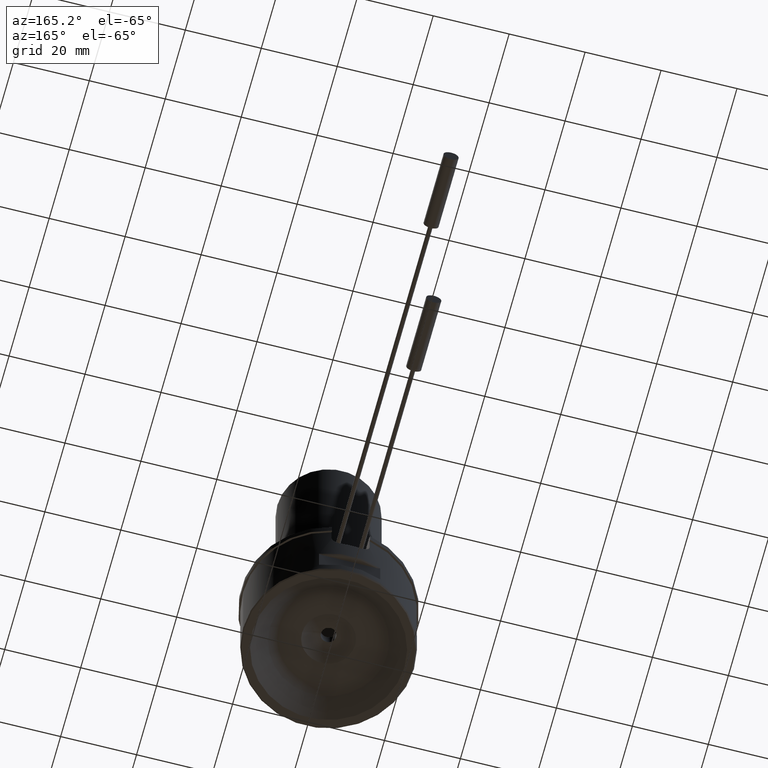
[diagram: clean part render]
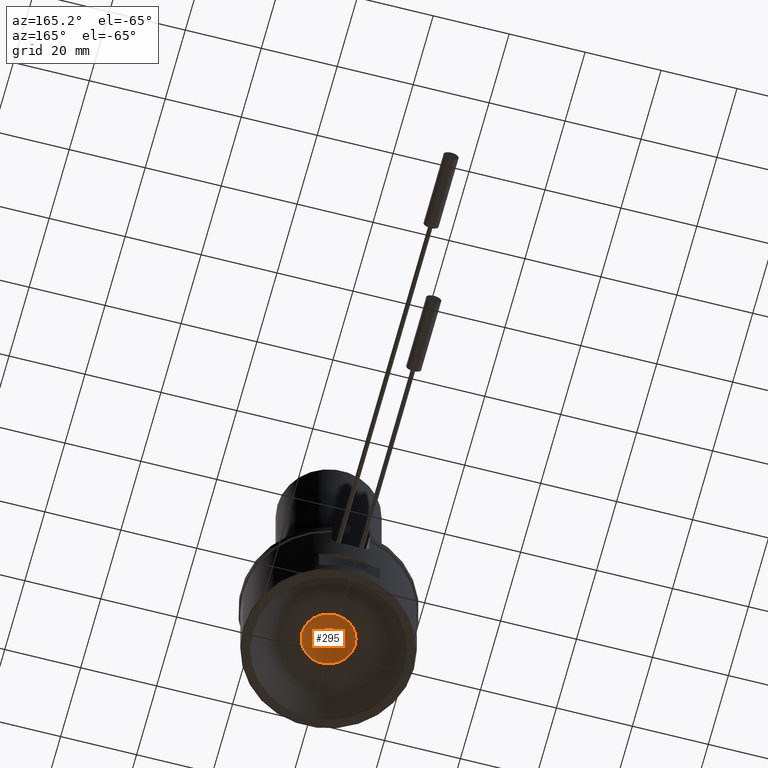
[diagram: same view with one face highlighted and labeled with its STEP entity id]
A machine part, auxiliary view. The second image highlights one B-rep face of the part: STEP entity #295.
In plain terms, the highlighted spherical surface has radius 11 mm.
Its self-contained STEP definition (entity closure, byte-faithful):
#26=SPHERICAL_SURFACE('',#1180,11.);
#295=ADVANCED_FACE('',(#387,#388),#26,.F.);
#387=FACE_BOUND('',#467,.T.);
#388=FACE_BOUND('',#468,.T.);
#467=EDGE_LOOP('',(#636));
#468=EDGE_LOOP('',(#637));
#636=ORIENTED_EDGE('',*,*,#977,.T.);
#637=ORIENTED_EDGE('',*,*,#976,.F.);
#868=VERTEX_POINT('',#1894);
#869=VERTEX_POINT('',#1897);
#976=EDGE_CURVE('',#868,#868,#1066,.T.);
#977=EDGE_CURVE('',#869,#869,#1067,.T.);
#1066=CIRCLE('',#1177,1.99999999999999);
#1067=CIRCLE('',#1179,6.98212002188452);
#1177=AXIS2_PLACEMENT_3D('',#1893,#1418,#1419);
#1179=AXIS2_PLACEMENT_3D('',#1896,#1422,#1423);
#1180=AXIS2_PLACEMENT_3D('',#1898,#1424,#1425);
#1418=DIRECTION('',(0.,0.,-1.));
#1419=DIRECTION('',(1.,0.,0.));
#1422=DIRECTION('',(0.,0.,-1.));
#1423=DIRECTION('',(1.,0.,0.));
#1424=DIRECTION('',(0.,-6.12323399573677E-17,1.));
#1425=DIRECTION('',(0.,-1.,0.));
#1893=CARTESIAN_POINT('',(0.,0.,8.31665382639197));
#1894=CARTESIAN_POINT('',(1.99999999999999,0.,8.31665382639197));
#1896=CARTESIAN_POINT('',(0.,0.,5.99999999999996));
#1897=CARTESIAN_POINT('',(6.98212002188452,0.,5.99999999999996));
#1898=CARTESIAN_POINT('',(0.,0.,-2.5));